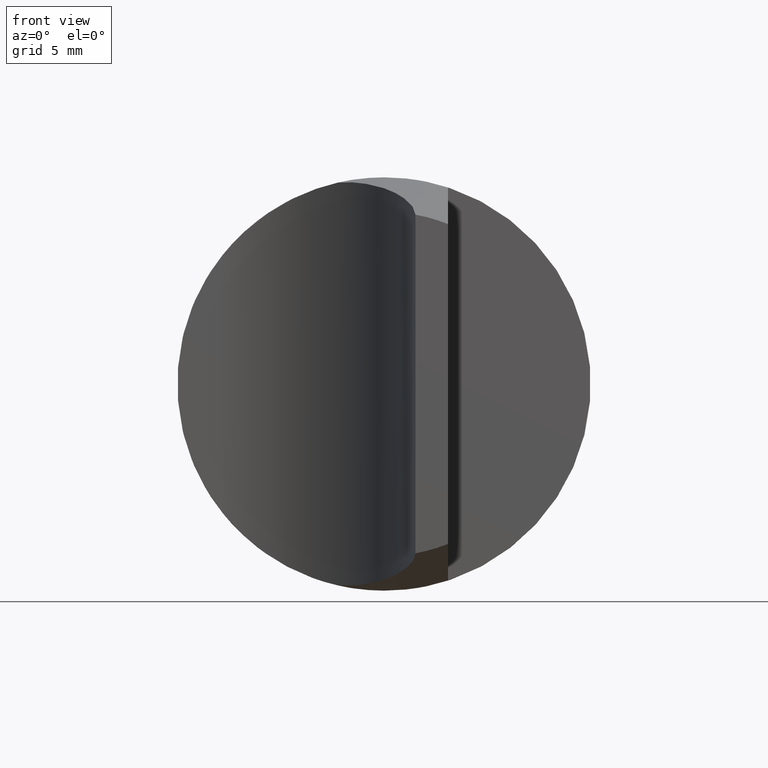
[diagram: clean part render]
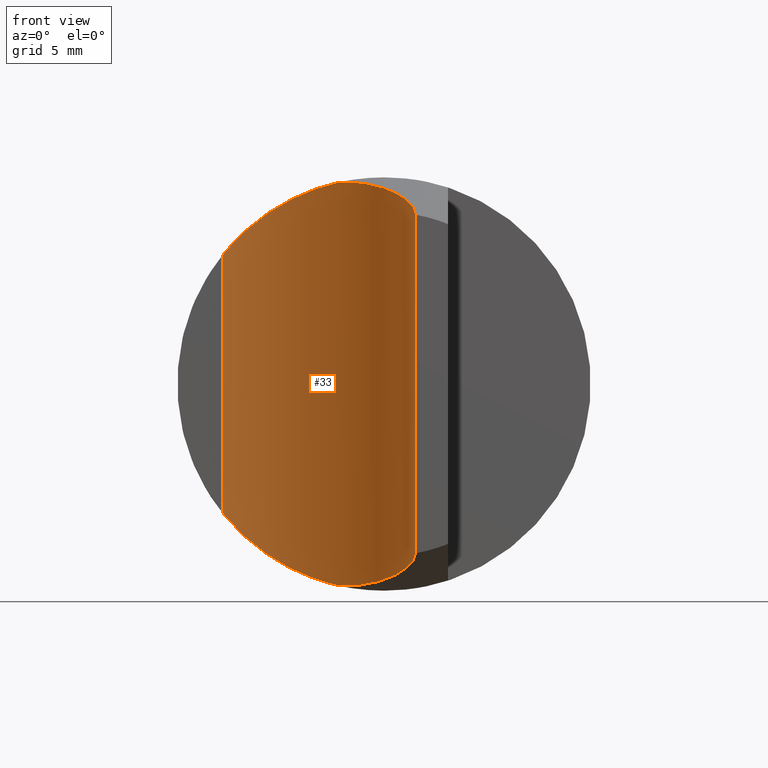
[diagram: same view with one face highlighted and labeled with its STEP entity id]
A machine part, front view. The second image highlights one B-rep face of the part: STEP entity #33.
In plain terms, the highlighted cylindrical surface (partial cylindrical patch) has radius 8.89 mm, axis along (-0, -0, 1).
Its self-contained STEP definition (entity closure, byte-faithful):
#2 = ORIENTED_EDGE ( 'NONE', *, *, #168, .T. ) ;
#10 = CARTESIAN_POINT ( 'NONE',  ( 0.05389593144397528818, 0.05358757262335893390, -0.3200295525406460784 ) ) ;
#12 = CARTESIAN_POINT ( 'NONE',  ( 0.008162530733020059021, 0.1788445712727954884, -0.3524034818403248837 ) ) ;
#25 = CARTESIAN_POINT ( 'NONE',  ( -0.09173517367998862415, 0.2865513802599914395, -0.3637167740118287806 ) ) ;
#26 = CARTESIAN_POINT ( 'NONE',  ( -0.2632037937924236459, 0.3488152442028354949, 0.2673453676166723247 ) ) ;
#28 = CARTESIAN_POINT ( 'NONE',  ( -0.1751943201831005215, 0.3297314168070968887, 0.3317241511884505556 ) ) ;
#33 = ADVANCED_FACE ( 'NONE', ( #397 ), #392, .F. ) ;
#36 = VERTEX_POINT ( 'NONE', #80 ) ;
#38 = CARTESIAN_POINT ( 'NONE',  ( -0.1564695837394791678, 0.3224289547519984533, 0.3409563486291329326 ) ) ;
#42 = CARTESIAN_POINT ( 'NONE',  ( 0.03773540837664415143, 0.1157470939069149135, 0.3362670873531961035 ) ) ;
#45 = CARTESIAN_POINT ( 'NONE',  ( 0.05210639781679927279, 0.06734073502539256184, 0.3235331812072446134 ) ) ;
#48 = CARTESIAN_POINT ( 'NONE',  ( 0.05699999999999994654, 0.000000000000000000, -0.3072576280582794417 ) ) ;
#49 = CARTESIAN_POINT ( 'NONE',  ( -1.023567611930438158E-17, 0.1914445089314394666, 0.3552331493150534536 ) ) ;
#53 = CARTESIAN_POINT ( 'NONE',  ( -0.2636543918100952566, 0.3491696361071627286, -0.2675791188318064617 ) ) ;
#55 = CARTESIAN_POINT ( 'NONE',  ( -0.1755888523203660290, 0.3302752905494422131, -0.3320461939475211621 ) ) ;
#62 = CARTESIAN_POINT ( 'NONE',  ( -0.08300000000000005984, 0.2800000000000000266, 0.3656993300513415868 ) ) ;
#67 = EDGE_CURVE ( 'NONE', #332, #75, #146, .T. ) ;
#69 = LINE ( 'NONE', #550, #260 ) ;
#75 = VERTEX_POINT ( 'NONE', #535 ) ;
#80 = CARTESIAN_POINT ( 'NONE',  ( 0.05699999999999994654, 0.000000000000000000, -0.3072576280582794417 ) ) ;
#81 = EDGE_CURVE ( 'NONE', #349, #467, #284, .T. ) ;
#82 = CARTESIAN_POINT ( 'NONE',  ( -0.02373373549349001854, 0.2238252393056452960, 0.3617354392341721181 ) ) ;
#87 = CARTESIAN_POINT ( 'NONE',  ( 0.03168859324749772471, 0.1317699082634022356, 0.3405210863637349594 ) ) ;
#101 = CARTESIAN_POINT ( 'NONE',  ( -0.2304421806409243656, 0.3447711106462970077, -0.2966624757818433489 ) ) ;
#111 = CARTESIAN_POINT ( 'NONE',  ( -0.03040658045483055419, 0.2316223268663026580, 0.3629943207310737385 ) ) ;
#128 = DIRECTION ( 'NONE',  ( -0.000000000000000000, -0.000000000000000000, 1.000000000000000000 ) ) ;
#132 = CARTESIAN_POINT ( 'NONE',  ( 0.04180344482912257131, 0.1054280253186961475, -0.3334952626512851515 ) ) ;
#143 = CARTESIAN_POINT ( 'NONE',  ( -0.1006927159445004383, 0.2926316993642499864, -0.3613552875620836269 ) ) ;
#146 = B_SPLINE_CURVE_WITH_KNOTS ( 'NONE', 3,
 ( #357, #427, #45, #42, #87, #270, #439, #49 ),
 .UNSPECIFIED., .F., .F.,
 ( 4, 2, 2, 4 ),
 ( 2.018527098240391568E-07, 0.002631408996182897034, 0.003947012567919432578, 0.005262616139655970290 ),
 .UNSPECIFIED. ) ;
#149 = DIRECTION ( 'NONE',  ( -0.000000000000000000, -0.000000000000000000, 1.000000000000000000 ) ) ;
#152 = B_SPLINE_CURVE_WITH_KNOTS ( 'NONE', 3,
 ( #536, #326, #307, #82, #111, #295, #463, #200 ),
 .UNSPECIFIED., .F., .F.,
 ( 4, 2, 2, 4 ),
 ( 0.005262616139655970290, 0.006033763861045115563, 0.006804911582434260836, 0.008347207025212551382 ),
 .UNSPECIFIED. ) ;
#168 = EDGE_CURVE ( 'NONE', #36, #332, #69, .T. ) ;
#169 = CARTESIAN_POINT ( 'NONE',  ( -0.2860095759409554406, 0.3499999999999998668, 0.2427940999160285440 ) ) ;
#173 = CARTESIAN_POINT ( 'NONE',  ( -0.08300000000000004596, 0.2800000000000000822, -0.3656993300513415868 ) ) ;
#179 = CARTESIAN_POINT ( 'NONE',  ( 0.01480946273222317165, 0.1671334981151129662, -0.3495465601968250624 ) ) ;
#196 = CARTESIAN_POINT ( 'NONE',  ( -0.1568029075420607765, 0.3231046993329488859, -0.3412513862951868093 ) ) ;
#200 = CARTESIAN_POINT ( 'NONE',  ( -0.08300000000000005984, 0.2800000000000000266, 0.3656993300513415868 ) ) ;
#202 = DIRECTION ( 'NONE',  ( -0.000000000000000000, -0.000000000000000000, 1.000000000000000000 ) ) ;
#212 = B_SPLINE_CURVE_WITH_KNOTS ( 'NONE', 3,
 ( #62, #256, #538, #410, #213, #244, #38, #28, #337, #460, #350, #378, #26, #508, #169, #348 ),
 .UNSPECIFIED., .F., .F.,
 ( 4, 2, 2, 2, 2, 2, 2, 4 ),
 ( 0.008225823542601592292, 0.009065952092789503897, 0.009906080642977413767, 0.01074620919316532537, 0.01158633774335323698, 0.01326659484372905498, 0.01410672339391696659, 0.01494685194410487646 ),
 .UNSPECIFIED. ) ;
#213 = CARTESIAN_POINT ( 'NONE',  ( -0.1284678968790500531, 0.3090911609416320260, 0.3524506349133188499 ) ) ;
#219 = CARTESIAN_POINT ( 'NONE',  ( -0.2929999999999999272, 0.3500000000000000333, 0.2340427311411316103 ) ) ;
#221 = CARTESIAN_POINT ( 'NONE',  ( -0.2929999999999999272, 0.000000000000000000, -0.3750000000000000555 ) ) ;
#230 = CARTESIAN_POINT ( 'NONE',  ( -0.08300000000000004596, 0.2800000000000000822, -0.3656993300513415868 ) ) ;
#232 = CARTESIAN_POINT ( 'NONE',  ( -0.1190013356496691516, 0.3038747567303218267, -0.3557461862156089949 ) ) ;
#236 = CARTESIAN_POINT ( 'NONE',  ( -0.2123448512199925808, 0.3411185895289821635, -0.3098318642983278193 ) ) ;
#244 = CARTESIAN_POINT ( 'NONE',  ( -0.1471107150038001021, 0.3183150565916514907, 0.3450853345339359168 ) ) ;
#256 = CARTESIAN_POINT ( 'NONE',  ( -0.09170077586641516010, 0.2865255818998113102, 0.3637245810223753151 ) ) ;
#260 = VECTOR ( 'NONE', #202, 39.37007874015748143 ) ;
#264 = CARTESIAN_POINT ( 'NONE',  ( -0.08300000000000004596, 0.2800000000000000822, -0.3656993300513415868 ) ) ;
#270 = CARTESIAN_POINT ( 'NONE',  ( 0.01747203272669209037, 0.1624595586702742567, 0.3484033464578458195 ) ) ;
#274 = CARTESIAN_POINT ( 'NONE',  ( 0.05700000000000003675, 0.000000000000000000, 0.3072576280582791086 ) ) ;
#284 = LINE ( 'NONE', #539, #361 ) ;
#293 = ORIENTED_EDGE ( 'NONE', *, *, #67, .T. ) ;
#295 = CARTESIAN_POINT ( 'NONE',  ( -0.05132550769390741702, 0.2539887102493640914, 0.3658646029648028319 ) ) ;
#307 = CARTESIAN_POINT ( 'NONE',  ( -0.01127177500274419326, 0.2079212980707239589, 0.3587867112464082076 ) ) ;
#308 = EDGE_CURVE ( 'NONE', #349, #384, #526, .T. ) ;
#326 = CARTESIAN_POINT ( 'NONE',  ( -0.005444995084659402101, 0.1997779083520337395, 0.3570932831142932251 ) ) ;
#332 = VERTEX_POINT ( 'NONE', #274 ) ;
#337 = CARTESIAN_POINT ( 'NONE',  ( -0.1846002839174809840, 0.3329312738228164537, 0.3265967015005262764 ) ) ;
#340 = VERTEX_POINT ( 'NONE', #496 ) ;
#348 = CARTESIAN_POINT ( 'NONE',  ( -0.2929999999999999272, 0.3500000000000000333, 0.2340427311411316103 ) ) ;
#349 = VERTEX_POINT ( 'NONE', #451 ) ;
#350 = CARTESIAN_POINT ( 'NONE',  ( -0.2301350362444401498, 0.3447174356441221610, 0.2969037184131732010 ) ) ;
#357 = CARTESIAN_POINT ( 'NONE',  ( 0.05700000000000003675, 0.000000000000000000, 0.3072576280582791086 ) ) ;
#358 = CARTESIAN_POINT ( 'NONE',  ( 0.03265874761786600328, 0.1310246780524201293, -0.3404027274564311867 ) ) ;
#361 = VECTOR ( 'NONE', #149, 39.37007874015748143 ) ;
#364 = CARTESIAN_POINT ( 'NONE',  ( -0.2929999999999999272, 0.3500000000000000333, -0.2340427311411317490 ) ) ;
#366 = EDGE_CURVE ( 'NONE', #75, #340, #152, .T. ) ;
#376 = ORIENTED_EDGE ( 'NONE', *, *, #81, .F. ) ;
#378 = CARTESIAN_POINT ( 'NONE',  ( -0.2551088060148685166, 0.3480442298683359970, 0.2750758719378489925 ) ) ;
#384 = VERTEX_POINT ( 'NONE', #264 ) ;
#392 = CYLINDRICAL_SURFACE ( 'NONE', #529, 0.3499999999999999778 ) ;
#393 = CARTESIAN_POINT ( 'NONE',  ( -0.04092492622502710148, 0.2443479308326645394, -0.3651574873769377616 ) ) ;
#395 = CARTESIAN_POINT ( 'NONE',  ( -0.01475677288413905150, 0.2127619446573260908, -0.3597914446998486948 ) ) ;
#397 = FACE_OUTER_BOUND ( 'NONE', #468, .T. ) ;
#400 = CARTESIAN_POINT ( 'NONE',  ( -0.06070065986947917325, 0.2632754949021093305, -0.3669323499710483993 ) ) ;
#402 = CARTESIAN_POINT ( 'NONE',  ( -0.006593322479596468860, 0.2016320055521713117, -0.3575225912134695205 ) ) ;
#407 = CARTESIAN_POINT ( 'NONE',  ( -0.1283972217093217183, 0.3090590543249764344, -0.3524809478153913544 ) ) ;
#408 = EDGE_CURVE ( 'NONE', #340, #467, #212, .T. ) ;
#410 = CARTESIAN_POINT ( 'NONE',  ( -0.1191837504153634431, 0.3039814032407955890, 0.3556867496385958671 ) ) ;
#416 = ORIENTED_EDGE ( 'NONE', *, *, #308, .T. ) ;
#427 = CARTESIAN_POINT ( 'NONE',  ( 0.05700000000000004369, 0.03421325678342312937, 0.3150248148763218903 ) ) ;
#439 = CARTESIAN_POINT ( 'NONE',  ( 0.009289342084239720146, 0.1772274533163474830, 0.3520596994009703717 ) ) ;
#448 = CARTESIAN_POINT ( 'NONE',  ( -0.2790028336375104390, 0.3499999999999999778, -0.2515658976339051334 ) ) ;
#451 = CARTESIAN_POINT ( 'NONE',  ( -0.2929999999999999272, 0.3500000000000000333, -0.2340427311411317490 ) ) ;
#458 = ORIENTED_EDGE ( 'NONE', *, *, #366, .T. ) ;
#460 = CARTESIAN_POINT ( 'NONE',  ( -0.2124558757189888014, 0.3411562254862400834, 0.3097711766550097501 ) ) ;
#463 = CARTESIAN_POINT ( 'NONE',  ( -0.06651589052363483801, 0.2676369178927260895, 0.3666108025533985626 ) ) ;
#464 = ORIENTED_EDGE ( 'NONE', *, *, #488, .T. ) ;
#467 = VERTEX_POINT ( 'NONE', #219 ) ;
#468 = EDGE_LOOP ( 'NONE', ( #416, #464, #2, #293, #458, #525, #376 ) ) ;
#477 = DIRECTION ( 'NONE',  ( 1.000000000000000000, 0.000000000000000000, 0.000000000000000000 ) ) ;
#488 = EDGE_CURVE ( 'NONE', #384, #36, #548, .T. ) ;
#496 = CARTESIAN_POINT ( 'NONE',  ( -0.08300000000000005984, 0.2800000000000000266, 0.3656993300513415868 ) ) ;
#508 = CARTESIAN_POINT ( 'NONE',  ( -0.2786505154410455209, 0.3497913389229936332, 0.2512044444217857442 ) ) ;
#525 = ORIENTED_EDGE ( 'NONE', *, *, #408, .T. ) ;
#526 = B_SPLINE_CURVE_WITH_KNOTS ( 'NONE', 3,
 ( #364, #448, #53, #101, #236, #55, #196, #407, #232, #143, #25, #230 ),
 .UNSPECIFIED., .F., .F.,
 ( 4, 2, 2, 2, 2, 4 ),
 ( 1.226634733346699349E-18, 0.001688367877156766788, 0.003376735754313532276, 0.005065103631470297546, 0.005909287570048679314, 0.006753471508627061082 ),
 .UNSPECIFIED. ) ;
#529 = AXIS2_PLACEMENT_3D ( 'NONE', #221, #128, #477 ) ;
#532 = CARTESIAN_POINT ( 'NONE',  ( 0.05700000000000001593, 0.02712274408366362188, -0.3134151073549550914 ) ) ;
#535 = CARTESIAN_POINT ( 'NONE',  ( -1.023567611930438158E-17, 0.1914445089314394666, 0.3552331493150534536 ) ) ;
#536 = CARTESIAN_POINT ( 'NONE',  ( -1.023567611930438158E-17, 0.1914445089314394666, 0.3552331493150534536 ) ) ;
#538 = CARTESIAN_POINT ( 'NONE',  ( -0.1007612971968119692, 0.2926791131605727125, 0.3613377799493938114 ) ) ;
#539 = CARTESIAN_POINT ( 'NONE',  ( -0.2929999999999999272, 0.3500000000000000333, -0.3750000000000000555 ) ) ;
#548 = B_SPLINE_CURVE_WITH_KNOTS ( 'NONE', 3,
 ( #173, #400, #393, #395, #402, #12, #179, #358, #132, #10, #532, #48 ),
 .UNSPECIFIED., .F., .F.,
 ( 4, 2, 2, 2, 2, 4 ),
 ( 3.279218707680934418E-07, 0.002089814155329254401, 0.003134557272058497313, 0.004179300388787740225, 0.006268786622246226049, 0.008358272855704713608 ),
 .UNSPECIFIED. ) ;
#550 = CARTESIAN_POINT ( 'NONE',  ( 0.05699999999999996736, 0.000000000000000000, -0.3750000000000000555 ) ) ;